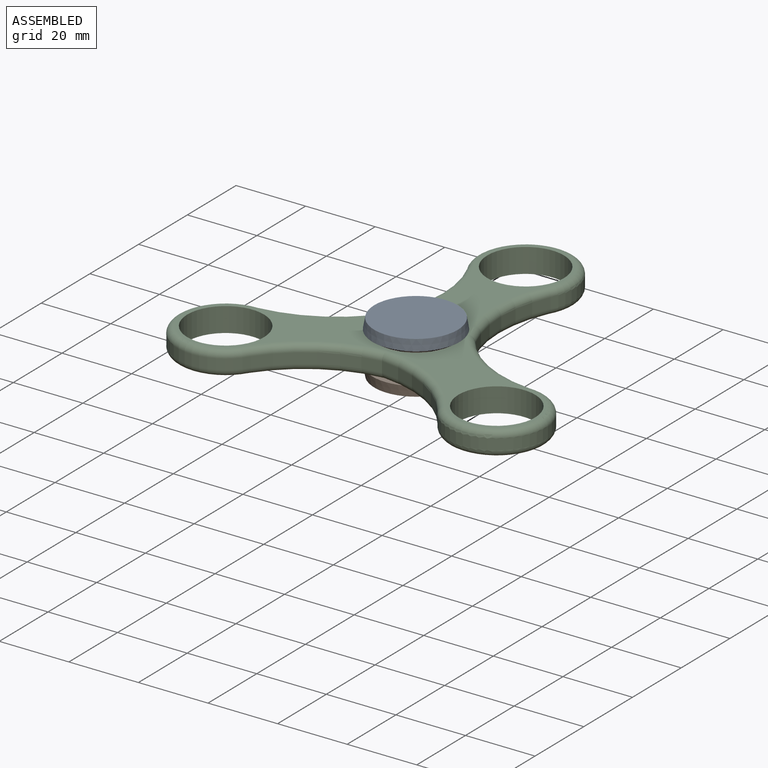
[diagram: assembled view]
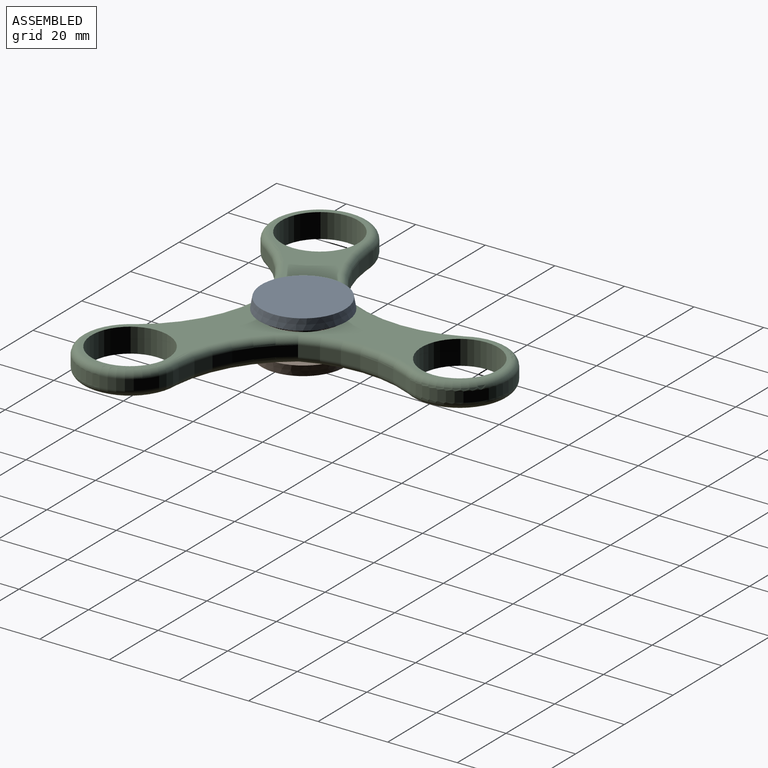
[diagram: assembled view, second angle]
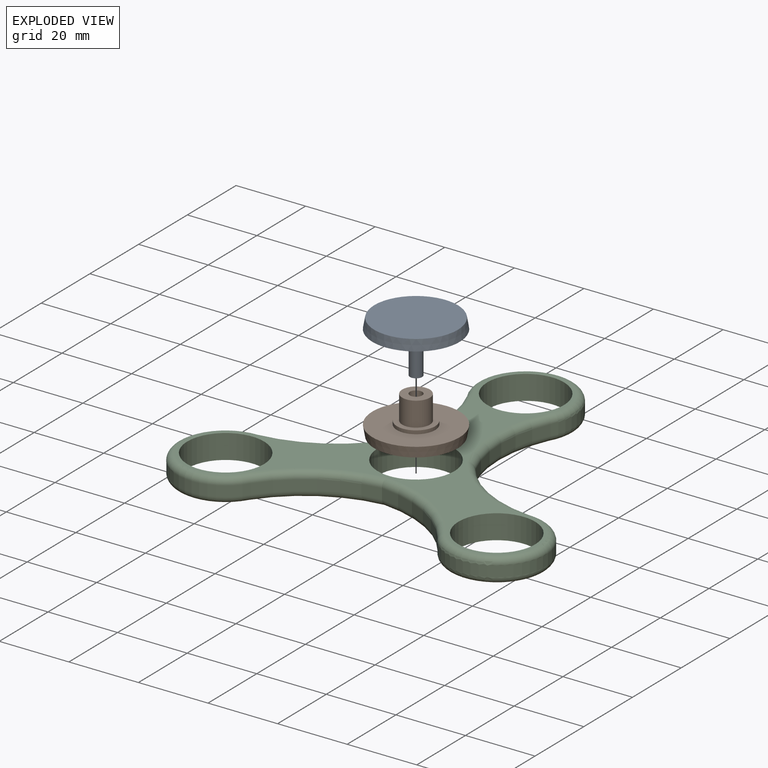
[diagram: exploded view]
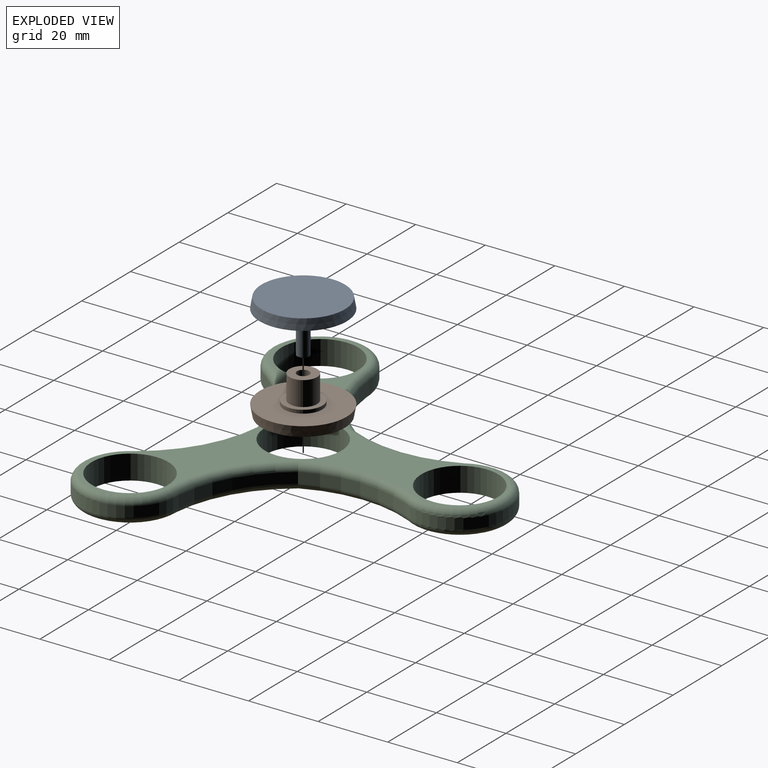
[diagram: exploded view, second angle]
ASSEMBLY  parts=3 mates=4
PART A: 7 faces, bbox 25.1x25.1x15 mm
  f0: cone r=12mm half-angle=10deg, axis (0,0,1), area 234.7mm2, adj f1,f2
  f1: plane 25.06x25.06mm, normal (0,0,1), area 398.1mm2, adj f0,f3
  f2: plane 24x24mm, normal (0,0,-1), area 452.4mm2, adj f0
  f3: cylinder r=5.5mm len=11mm, axis (0,0,-1), area 34.6mm2, adj f1,f4
  f4: plane 11x11mm, normal (0,0,1), area 85.4mm2, adj f3,f5
  f5: cylinder r=1.75mm len=11mm, axis (0,0,-1), area 121mm2, adj f4,f6
  f6: plane 3.5x3.5mm, normal (0,0,1), area 9.6mm2, adj f5
PART B: 8 faces, bbox 25.1x25.1x11 mm
  f0: cone r=12mm half-angle=10deg, axis (0,0,1), area 234.7mm2, adj f1,f2
  f1: plane 25.06x25.06mm, normal (0,0,1), area 398.1mm2, adj f0,f3
  f2: plane 24x24mm, normal (0,0,-1), area 442.5mm2, adj f0,f6
  f3: cylinder r=5.5mm len=11mm, axis (0,0,-1), area 34.6mm2, adj f1,f4
  f4: plane 11x11mm, normal (0,0,1), area 45.4mm2, adj f3,f5
  f5: cylinder r=3.98mm len=7.95mm, axis (0,0,-1), area 174.8mm2, adj f4,f7
  f6: cylinder r=1.78mm len=11mm, axis (0,0,-1), area 122.7mm2, adj f2,f7
  f7: plane 7.95x7.95mm, normal (0,0,1), area 39.7mm2, adj f5,f6
PART C: 39 faces, bbox 107.2x97.3x7 mm
  f0: cylinder r=37mm len=31mm, axis (0,0,-1), area 96mm2, adj f4,f7,f10,f14
  f1: cylinder r=37mm len=31mm, axis (0,0,-1), area 96mm2, adj f4,f9,f12,f23
  f2: cylinder r=11.03mm len=22.05mm, axis (0,0,-1), area 484.9mm2, adj f5,f6
  f3: cylinder r=11.03mm len=22.05mm, axis (0,0,-1), area 484.9mm2, adj f5,f6
  f4: cylinder r=14mm len=28mm, axis (0,0,-1), area 175.9mm2, adj f0,f1,f8,f11
  f5: plane 101.94x91.5mm, normal (0,0,1), area 1319.2mm2, adj f2,f3,f10,f11,f12,f15,f20,f21
  f6: plane 101.94x91.5mm, normal (0,0,-1), area 1319.2mm2, adj f2,f3,f7,f8,f9,f15,f17,f18
  f7: torus R=39mm, axis (0,0,1), area 102.7mm2, adj f0,f6,f8,f37
  f8: torus R=12mm, axis (0,0,1), area 174.9mm2, adj f4,f6,f7,f9
  f9: torus R=39mm, axis (0,0,1), area 102.7mm2, adj f1,f6,f8,f35
  f10: torus R=39mm, axis (0,0,1), area 102.7mm2, adj f0,f5,f11,f38
  f11: torus R=12mm, axis (0,0,1), area 174.9mm2, adj f4,f5,f10,f12
  f12: torus R=39mm, axis (0,0,1), area 102.7mm2, adj f1,f5,f11,f33
  f13: cylinder r=37mm len=26.85mm, axis (0,0,-1), area 96mm2, adj f16,f17,f20,f24
  f14: cylinder r=37mm len=26.85mm, axis (0,0,-1), area 96mm2, adj f0,f16,f19,f22
  f15: cylinder r=11.03mm len=22.05mm, axis (0,0,-1), area 484.9mm2, adj f5,f6
  f16: cylinder r=14mm len=28mm, axis (0,0,-1), area 175.9mm2, adj f13,f14,f18,f21
  f17: torus R=39mm, axis (0,0,1), area 102.7mm2, adj f6,f13,f18,f36
  f18: torus R=12mm, axis (0,0,1), area 174.9mm2, adj f6,f16,f17,f19
  f19: torus R=39mm, axis (0,0,1), area 102.7mm2, adj f6,f14,f18,f37
  f20: torus R=39mm, axis (0,0,1), area 102.7mm2, adj f5,f13,f21,f34
  f21: torus R=12mm, axis (0,0,1), area 174.9mm2, adj f5,f16,f20,f22
  f22: torus R=39mm, axis (0,0,1), area 102.7mm2, adj f5,f14,f21,f38
  f23: cylinder r=37mm len=26.85mm, axis (0,0,-1), area 96mm2, adj f1,f26,f27,f30
  f24: cylinder r=37mm len=26.85mm, axis (0,0,-1), area 96mm2, adj f13,f26,f29,f32
  f25: cylinder r=11.03mm len=22.05mm, axis (0,0,-1), area 484.9mm2, adj f5,f6
  f26: cylinder r=14mm len=28mm, axis (0,0,-1), area 175.9mm2, adj f23,f24,f28,f31
  f27: torus R=39mm, axis (0,0,1), area 102.7mm2, adj f6,f23,f28,f35
  f28: torus R=12mm, axis (0,0,1), area 174.9mm2, adj f6,f26,f27,f29
  f29: torus R=39mm, axis (0,0,1), area 102.7mm2, adj f6,f24,f28,f36
  f30: torus R=39mm, axis (0,0,1), area 102.7mm2, adj f5,f23,f31,f33
  f31: torus R=12mm, axis (0,0,1), area 174.9mm2, adj f5,f26,f30,f32
  f32: torus R=39mm, axis (0,0,1), area 102.7mm2, adj f5,f24,f31,f34
  f33: torus R=12mm, axis (0,0,1), area 0.2mm2, adj f5,f12,f30
  f34: torus R=12mm, axis (0,0,1), area 0.2mm2, adj f5,f20,f32
  f35: torus R=12mm, axis (0,0,1), area 0.2mm2, adj f6,f9,f27
  f36: torus R=12mm, axis (0,0,1), area 0.2mm2, adj f6,f17,f29
  f37: torus R=12mm, axis (0,0,1), area 0.2mm2, adj f6,f7,f19
  f38: torus R=12mm, axis (0,0,1), area 0.2mm2, adj f5,f10,f22
PLACE A rot(axis=(0,1,0),180deg) t=(14.11,-7.83,31.64)mm
PLACE B rot(axis=(-0.77,-0.64,0),0deg) t=(16.62,-7.59,16.64)mm
PLACE C t=(-16.12,8.42,20.64)mm
MATE planar A.f0 <-> B.f0  axis (0,0,-1) through (-16.12,8.42,16.64)mm
MATE planar A.f0 <-> C.f5  axis (0,0,-1) through (-16.12,8.42,27.64)mm
MATE cylindrical B.f0 <-> C.f2  axis (0,0,-1) through (-16.12,8.42,20.64)mm
MATE slider B.f0 <-> A.f0  axis (0,0,-1) through (-16.12,8.42,16.64)mm
